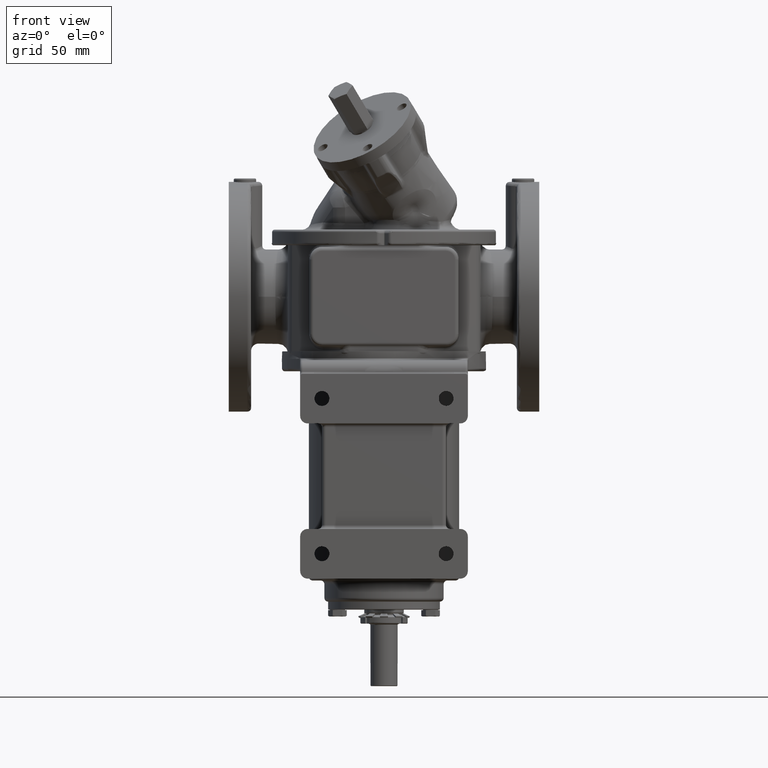
[diagram: clean part render]
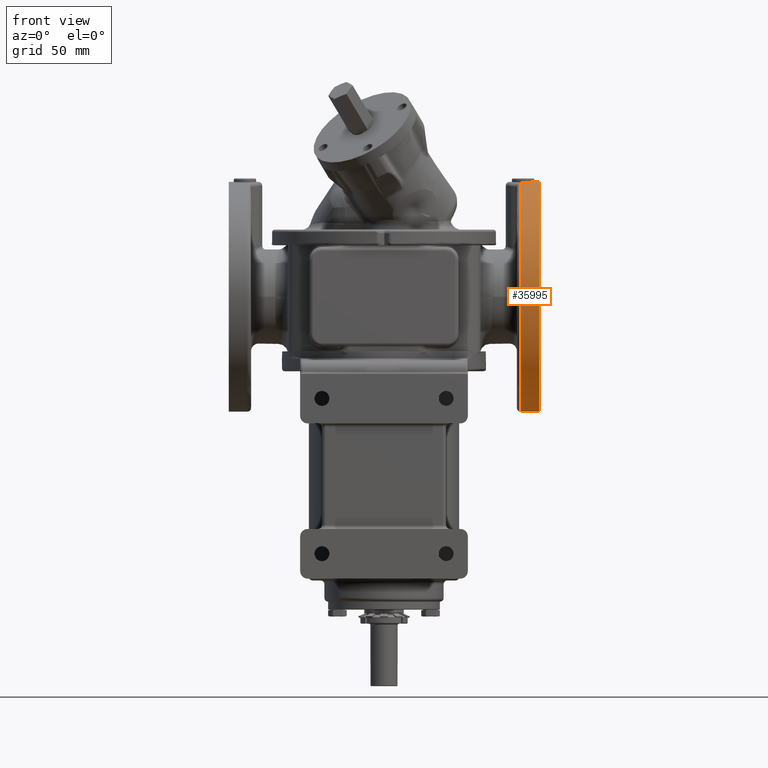
[diagram: same view with one face highlighted and labeled with its STEP entity id]
A machine part, front view. The second image highlights one B-rep face of the part: STEP entity #35995.
In plain terms, the highlighted cylindrical surface (partial cylindrical patch) has radius 92.5 mm, axis along (1, 0, 0).
Its self-contained STEP definition (entity closure, byte-faithful):
#8209=CARTESIAN_POINT('',(1.21E2,2.6E1,1.425E2));
#8234=CARTESIAN_POINT('',(1.07E2,1.851668522645E1,1.421968003783E2));
#8264=DIRECTION('',(1.E0,0.E0,0.E0));
#8265=VECTOR('',#8264,1.5E1);
#8266=CARTESIAN_POINT('',(1.1E2,2.6E1,-4.25E1));
#8267=LINE('',#8266,#8265);
#8389=CARTESIAN_POINT('',(1.07E2,1.851668522645E1,1.421968003783E2));
#8390=CARTESIAN_POINT('',(1.075562237847E2,1.814504257774E1,1.421666353519E2));
#8391=CARTESIAN_POINT('',(1.087140638783E2,1.754497373553E1,1.421136252801E2));
#8392=CARTESIAN_POINT('',(1.106256138273E2,1.703462596263E1,1.420646199052E2));
#8393=CARTESIAN_POINT('',(1.125418088762E2,1.694916494050E1,1.420561032459E2));
#8394=CARTESIAN_POINT('',(1.144519224340E2,1.726628894787E1,1.420872234291E2));
#8395=CARTESIAN_POINT('',(1.163034667471E2,1.801173766094E1,1.421560488902E2));
#8396=CARTESIAN_POINT('',(1.179255470057E2,1.913590868277E1,1.422478168494E2));
#8397=CARTESIAN_POINT('',(1.192248483485E2,2.052016487457E1,1.423417878053E2));
#8398=CARTESIAN_POINT('',(1.202449241674E2,2.221064001100E1,1.424283634781E2));
#8399=CARTESIAN_POINT('',(1.208685442096E2,2.410214886329E1,1.424870633288E2));
#8400=CARTESIAN_POINT('',(1.21E2,2.536035573536E1,1.425E2));
#8401=CARTESIAN_POINT('',(1.21E2,2.6E1,1.425E2));
#8403=DIRECTION('',(1.E0,8.970602038971E-14,0.E0));
#8404=VECTOR('',#8403,4.E0);
#8405=CARTESIAN_POINT('',(1.21E2,2.6E1,1.425E2));
#8406=LINE('',#8405,#8404);
#8407=CARTESIAN_POINT('',(1.25E2,2.6E1,5.E1));
#8408=DIRECTION('',(1.E0,0.E0,0.E0));
#8409=DIRECTION('',(0.E0,1.167594549573E-14,1.E0));
#8410=AXIS2_PLACEMENT_3D('',#8407,#8408,#8409);
#8412=CARTESIAN_POINT('',(1.1E2,2.6E1,5.E1));
#8413=DIRECTION('',(-1.E0,0.E0,0.E0));
#8414=DIRECTION('',(0.E0,0.E0,-1.E0));
#8415=AXIS2_PLACEMENT_3D('',#8412,#8413,#8414);
#8417=CARTESIAN_POINT('',(1.1E2,9.889024611161E0,1.410861486288E2));
#8418=CARTESIAN_POINT('',(1.099999997249E2,1.033677790929E1,1.411653454879E2));
#8419=CARTESIAN_POINT('',(1.099085759386E2,1.120720712330E1,1.413125938440E2));
#8420=CARTESIAN_POINT('',(1.095075147473E2,1.246378564706E1,1.415069024736E2));
#8421=CARTESIAN_POINT('',(1.088688255256E2,1.358988655390E1,1.416657537297E2));
#8422=CARTESIAN_POINT('',(1.080227257204E2,1.454875128530E1,1.417897847917E2));
#8423=CARTESIAN_POINT('',(1.073596284080E2,1.504475697959E1,1.418492205763E2));
#8424=CARTESIAN_POINT('',(1.07E2,1.525934974077E1,1.418743077906E2));
#8426=CARTESIAN_POINT('',(1.07E2,2.6E1,5.E1));
#8427=DIRECTION('',(1.E0,0.E0,0.E0));
#8428=DIRECTION('',(0.E0,-8.090070025457E-2,9.967221662521E-1));
#8429=AXIS2_PLACEMENT_3D('',#8426,#8427,#8428);
#15538=CARTESIAN_POINT('',(1.25E2,2.6E1,1.425E2));
#15539=CARTESIAN_POINT('',(1.25E2,2.6E1,-4.25E1));
#15540=VERTEX_POINT('',#15538);
#15541=VERTEX_POINT('',#15539);
#15651=CARTESIAN_POINT('',(1.1E2,2.6E1,-4.25E1));
#15652=CARTESIAN_POINT('',(1.1E2,9.889024611161E0,1.410861486288E2));
#15653=VERTEX_POINT('',#15651);
#15654=VERTEX_POINT('',#15652);
#15657=VERTEX_POINT('',#8424);
#15976=VERTEX_POINT('',#8209);
#15978=VERTEX_POINT('',#8234);
#35980=CARTESIAN_POINT('',(1.07E2,2.6E1,5.E1));
#35981=DIRECTION('',(1.E0,0.E0,0.E0));
#35982=DIRECTION('',(0.E0,0.E0,-1.E0));
#35983=AXIS2_PLACEMENT_3D('',#35980,#35981,#35982);
#35984=CYLINDRICAL_SURFACE('',#35983,9.25E1);
#35985=ORIENTED_EDGE('',*,*,#35825,.T.);
#35986=ORIENTED_EDGE('',*,*,#35795,.T.);
#35988=ORIENTED_EDGE('',*,*,#35987,.T.);
#35989=ORIENTED_EDGE('',*,*,#35791,.F.);
#35990=ORIENTED_EDGE('',*,*,#34658,.T.);
#35991=ORIENTED_EDGE('',*,*,#34780,.T.);
#35992=ORIENTED_EDGE('',*,*,#35786,.F.);
#35993=EDGE_LOOP('',(#35985,#35986,#35988,#35989,#35990,#35991,#35992));
#35994=FACE_OUTER_BOUND('',#35993,.F.);
#35995=ADVANCED_FACE('',(#35994),#35984,.T.);
#8402=B_SPLINE_CURVE_WITH_KNOTS('',3,(#8389,#8390,#8391,#8392,#8393,#8394,#8395,
#8396,#8397,#8398,#8399,#8400,#8401),.UNSPECIFIED.,.F.,.F.,(4,1,1,1,1,1,1,1,1,1,
4),(0.E0,1.E-1,2.E-1,3.E-1,4.E-1,5.E-1,6.E-1,7.E-1,8.E-1,9.E-1,1.E0),
.UNSPECIFIED.);
#8411=CIRCLE('',#8410,9.25E1);
#8416=CIRCLE('',#8415,9.25E1);
#8425=B_SPLINE_CURVE_WITH_KNOTS('',3,(#8417,#8418,#8419,#8420,#8421,#8422,#8423,
#8424),.UNSPECIFIED.,.F.,.F.,(4,1,1,1,1,4),(0.E0,2.E-1,4.E-1,6.E-1,8.E-1,1.E0),
.UNSPECIFIED.);
#8430=CIRCLE('',#8429,9.25E1);
#34658=EDGE_CURVE('',#15653,#15654,#8416,.T.);
#34780=EDGE_CURVE('',#15654,#15657,#8425,.T.);
#35786=EDGE_CURVE('',#15978,#15657,#8430,.T.);
#35791=EDGE_CURVE('',#15653,#15541,#8267,.T.);
#35795=EDGE_CURVE('',#15976,#15540,#8406,.T.);
#35825=EDGE_CURVE('',#15978,#15976,#8402,.T.);
#35987=EDGE_CURVE('',#15540,#15541,#8411,.T.);